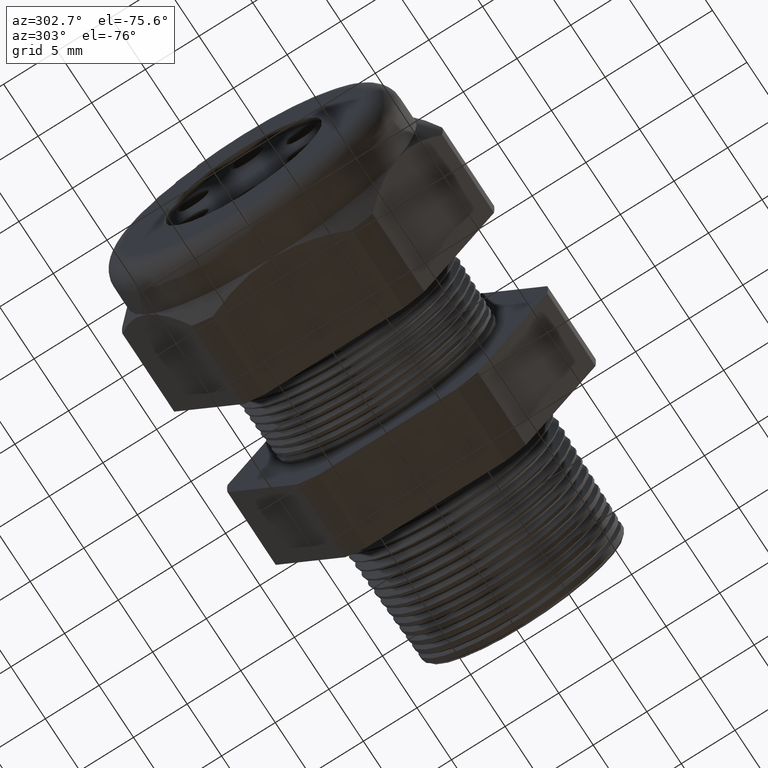
[diagram: clean part render]
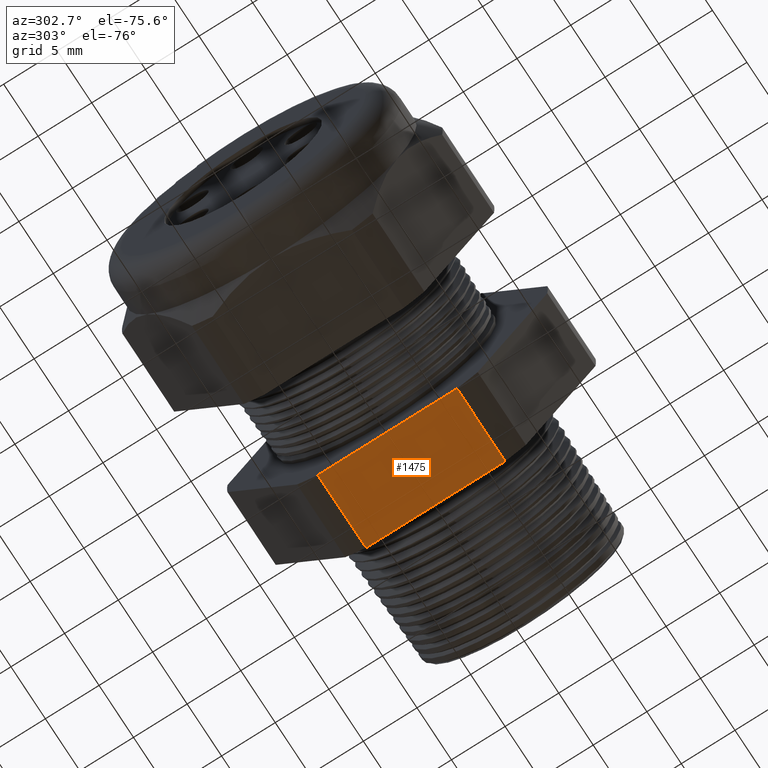
[diagram: same view with one face highlighted and labeled with its STEP entity id]
A machine part, auxiliary view. The second image highlights one B-rep face of the part: STEP entity #1475.
In plain terms, the highlighted planar face has unit normal (0, 0, -1).
Its self-contained STEP definition (entity closure, byte-faithful):
#1208 = VERTEX_POINT ( 'NONE', #4330 ) ;
#1210 = EDGE_CURVE ( 'NONE', #1208, #1211, #4329, .T. ) ;
#1211 = VERTEX_POINT ( 'NONE', #4325 ) ;
#1230 = VERTEX_POINT ( 'NONE', #4419 ) ;
#1283 = EDGE_CURVE ( 'NONE', #1230, #1284, #4458, .T. ) ;
#1284 = VERTEX_POINT ( 'NONE', #4454 ) ;
#1419 = EDGE_CURVE ( 'NONE', #1208, #1284, #4681, .T. ) ;
#1475 = ADVANCED_FACE ( 'NONE', ( #4777 ), #4775, .T. ) ;
#1476 = EDGE_LOOP ( 'NONE', ( #1477, #1478, #1479, #1481 ) ) ;
#1477 = ORIENTED_EDGE ( 'NONE', *, *, #1419, .T. ) ;
#1478 = ORIENTED_EDGE ( 'NONE', *, *, #1283, .F. ) ;
#1479 = ORIENTED_EDGE ( 'NONE', *, *, #1480, .F. ) ;
#1480 = EDGE_CURVE ( 'NONE', #1211, #1230, #4770, .T. ) ;
#1481 = ORIENTED_EDGE ( 'NONE', *, *, #1210, .F. ) ;
#4325 = CARTESIAN_POINT ( 'NONE',  ( -0.3099999999999998300, 0.2553368167734529900, -0.5300000000000001400 ) ) ;
#4326 = DIRECTION ( 'NONE',  ( 0.0000000000000000000, 1.000000000000000000, 0.0000000000000000000 ) ) ;
#4327 = VECTOR ( 'NONE', #4326, 39.37007874015748100 ) ;
#4328 = CARTESIAN_POINT ( 'NONE',  ( -0.3100000000000000000, 1.060000000000000100, -0.5300000000000001400 ) ) ;
#4329 = LINE ( 'NONE', #4328, #4327 ) ;
#4330 = CARTESIAN_POINT ( 'NONE',  ( -0.3099999999999998300, -0.2553368167734529900, -0.5300000000000001400 ) ) ;
#4419 = CARTESIAN_POINT ( 'NONE',  ( -0.5855905511811020400, 0.2553368167734529900, -0.5300000000000001400 ) ) ;
#4454 = CARTESIAN_POINT ( 'NONE',  ( -0.5855905511811020400, -0.2553368167734529900, -0.5300000000000001400 ) ) ;
#4455 = DIRECTION ( 'NONE',  ( 0.0000000000000000000, -1.000000000000000000, 0.0000000000000000000 ) ) ;
#4456 = VECTOR ( 'NONE', #4455, 39.37007874015748100 ) ;
#4457 = CARTESIAN_POINT ( 'NONE',  ( -0.5855905511811022600, 1.060000000000000100, -0.5300000000000001400 ) ) ;
#4458 = LINE ( 'NONE', #4457, #4456 ) ;
#4678 = DIRECTION ( 'NONE',  ( -1.000000000000000000, 0.0000000000000000000, 0.0000000000000000000 ) ) ;
#4679 = VECTOR ( 'NONE', #4678, 39.37007874015748100 ) ;
#4680 = CARTESIAN_POINT ( 'NONE',  ( 0.2000000000000000400, -0.2553368167734529900, -0.5300000000000001400 ) ) ;
#4681 = LINE ( 'NONE', #4680, #4679 ) ;
#4770 = LINE ( 'NONE', #4776, #4835 ) ;
#4771 = DIRECTION ( 'NONE',  ( -1.000000000000000000, 0.0000000000000000000, 0.0000000000000000000 ) ) ;
#4772 = DIRECTION ( 'NONE',  ( 0.0000000000000000000, 0.0000000000000000000, -1.000000000000000000 ) ) ;
#4773 = CARTESIAN_POINT ( 'NONE',  ( 0.2000000000000000400, 0.2553368167734529900, -0.5300000000000001400 ) ) ;
#4774 = AXIS2_PLACEMENT_3D ( 'NONE', #4773, #4772, #4771 ) ;
#4775 = PLANE ( 'NONE',  #4774 ) ;
#4776 = CARTESIAN_POINT ( 'NONE',  ( 0.2000000000000000400, 0.2553368167734529900, -0.5300000000000001400 ) ) ;
#4777 = FACE_OUTER_BOUND ( 'NONE', #1476, .T. ) ;
#4834 = DIRECTION ( 'NONE',  ( -1.000000000000000000, 0.0000000000000000000, 0.0000000000000000000 ) ) ;
#4835 = VECTOR ( 'NONE', #4834, 39.37007874015748100 ) ;